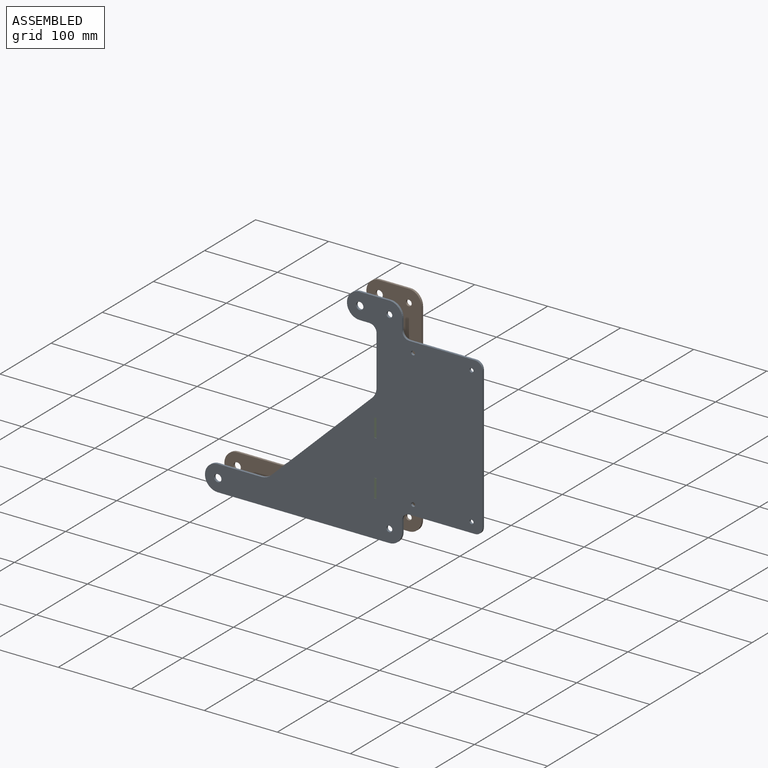
[diagram: assembled view]
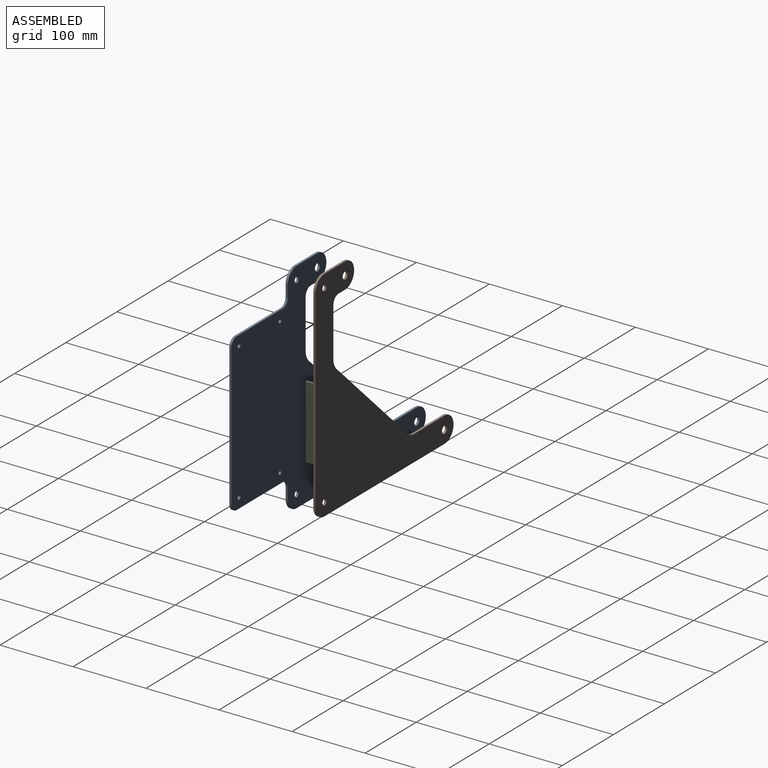
[diagram: assembled view, second angle]
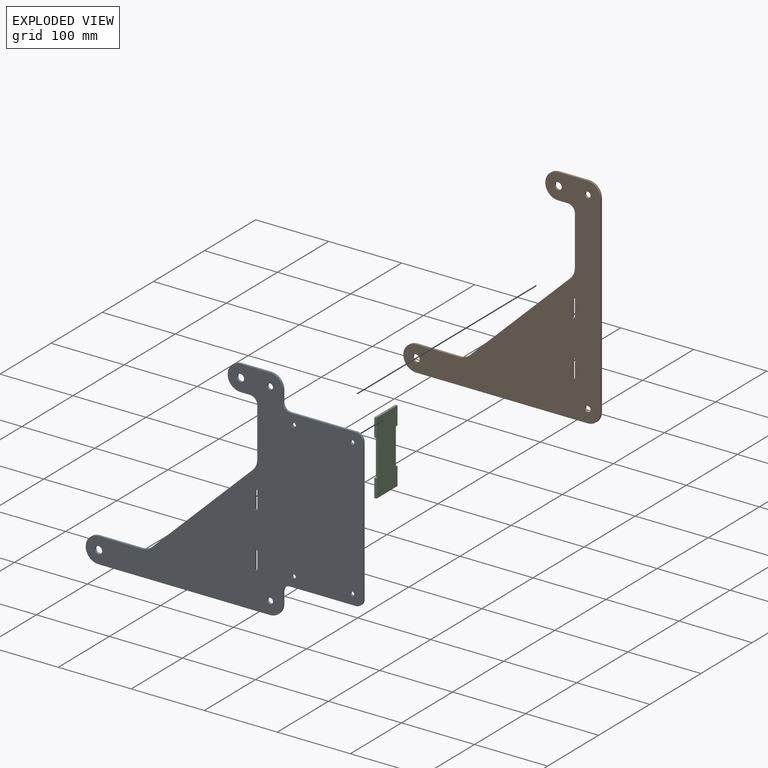
[diagram: exploded view]
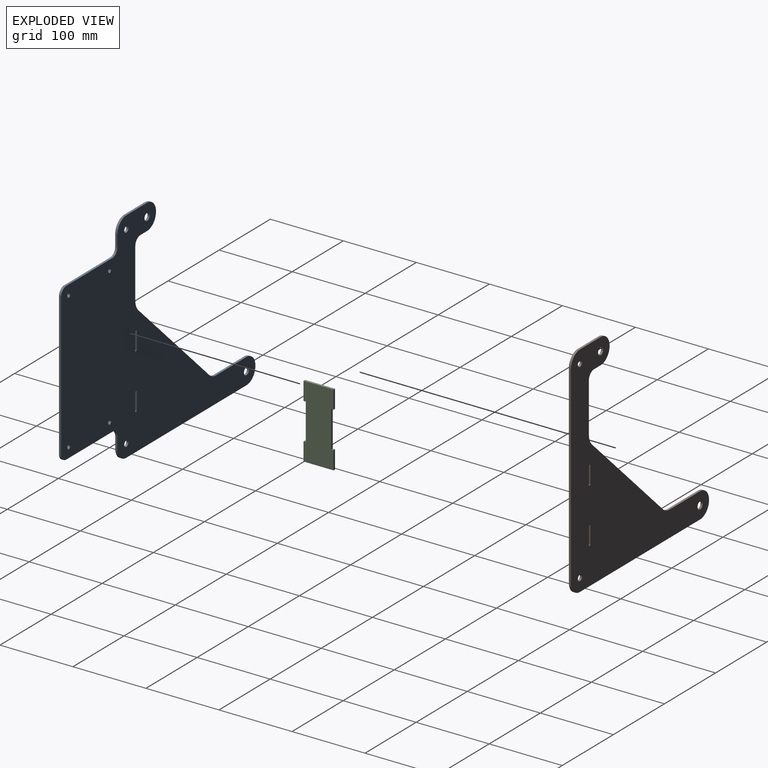
[diagram: exploded view, second angle]
ASSEMBLY  parts=3 mates=2
PART A: 40 faces, bbox 380x3x300.2 mm
  f0: cylinder r=10mm len=10mm, axis (0,1,0), area 47.1mm2, adj f1,f30,f38,f39
  f1: plane 15.08x3mm, normal (1,0,0), area 45.2mm2, adj f0,f2,f38,f39
  f2: cylinder r=17.5mm len=17.5mm, axis (0,1,0), area 82.5mm2, adj f1,f3,f38,f39
  f3: plane 40.55x3mm, normal (0,0,1), area 121.6mm2, adj f2,f4,f38,f39
  f4: cylinder r=17.5mm len=35mm, axis (0,1,0), area 164.9mm2, adj f3,f5,f38,f39
  f5: plane 13.05x3mm, normal (0,0,-1), area 39.1mm2, adj f4,f6,f38,f39
  f6: cylinder r=10mm len=10mm, axis (0,1,0), area 47.1mm2, adj f5,f7,f38,f39
  f7: plane 67.31x3mm, normal (-1,0,0), area 201.9mm2, adj f6,f8,f38,f39
  f8: cylinder r=20mm len=14.43mm, axis (0,1,0), area 48.3mm2, adj f7,f9,f38,f39
  f9: plane 138.37x132.86mm, normal (-0.69,0,0.72), area 575.5mm2, adj f8,f10,f38,f39
  f10: cylinder r=20mm len=13.85mm, axis (0,1,0), area 45.9mm2, adj f9,f11,f38,f39
  f11: plane 59.13x3mm, normal (0,0,1), area 177.4mm2, adj f10,f12,f38,f39
  f12: cylinder r=17.5mm len=35mm, axis (0,1,0), area 164.9mm2, adj f11,f13,f38,f39
  f13: plane 235x3mm, normal (0,0,-1), area 705mm2, adj f12,f14,f38,f39
  f14: cylinder r=17.5mm len=17.5mm, axis (0,1,0), area 82.5mm2, adj f13,f15,f38,f39
  f15: plane 15.08x3mm, normal (1,0,0), area 45.2mm2, adj f14,f16,f38,f39
  f16: cylinder r=10mm len=10mm, axis (0,1,0), area 47.1mm2, adj f15,f17,f38,f39
  f17: plane 90x3mm, normal (0,0,-1), area 270mm2, adj f16,f18,f38,f39
  f18: cylinder r=10mm len=10mm, axis (0,1,0), area 47.1mm2, adj f17,f19,f38,f39
  f19: plane 195x3mm, normal (1,0,0), area 585mm2, adj f18,f20,f38,f39
  f20: cylinder r=10mm len=10mm, axis (0,1,0), area 47.1mm2, adj f19,f30,f38,f39
  f21: plane 25.2x3mm, normal (-1,0,0), area 75.6mm2, adj f22,f35,f38,f39
  f22: plane 3.2x3mm, normal (0,0,1), area 9.6mm2, adj f21,f23,f38,f39
  f23: plane 25.2x3mm, normal (1,0,0), area 75.6mm2, adj f22,f35,f38,f39
  f24: plane 25.2x3mm, normal (-1,0,0), area 75.6mm2, adj f25,f36,f38,f39
  f25: plane 3.2x3mm, normal (0,0,1), area 9.6mm2, adj f24,f26,f38,f39
  f26: plane 25.2x3mm, normal (1,0,0), area 75.6mm2, adj f25,f36,f38,f39
  f27: cylinder r=5mm len=10mm, axis (0,1,0), area 94.2mm2, adj f38,f39
  f28: cylinder r=5mm len=10mm, axis (0,1,0), area 94.2mm2, adj f38,f39
  f29: cylinder r=4mm len=8mm, axis (0,1,0), area 75.4mm2, adj f38,f39
  f30: plane 90x3mm, normal (0,0,1), area 270mm2, adj f0,f20,f38,f39
  f31: cylinder r=2.75mm len=5.5mm, axis (0,1,0), area 51.8mm2, adj f38,f39
  f32: cylinder r=2.75mm len=5.5mm, axis (0,1,0), area 51.8mm2, adj f38,f39
  f33: cylinder r=2.75mm len=5.5mm, axis (0,1,0), area 51.8mm2, adj f38,f39
  f34: cylinder r=2.75mm len=5.5mm, axis (0,1,0), area 51.8mm2, adj f38,f39
  f35: plane 3.2x3mm, normal (0,0,-1), area 9.6mm2, adj f21,f23,f38,f39
  f36: plane 3.2x3mm, normal (0,0,-1), area 9.6mm2, adj f24,f26,f38,f39
  f37: cylinder r=4mm len=8mm, axis (0,1,0), area 75.4mm2, adj f38,f39
  f38: plane 380x300.17mm, normal (0,-1,0), area 53778.4mm2, adj f0,f1,f2,f3,f4,f5,f6,f7
  f39: plane 380x300.17mm, normal (0,1,0), area 53778.4mm2, adj f0,f1,f2,f3,f4,f5,f6,f7
PART B: 28 faces, bbox 270x3x300.2 mm
  f0: plane 25.2x3mm, normal (-1,0,0), area 75.6mm2, adj f1,f25,f26,f27
  f1: plane 3.2x3mm, normal (0,0,1), area 9.6mm2, adj f0,f2,f26,f27
  f2: plane 25.2x3mm, normal (1,0,0), area 75.6mm2, adj f1,f25,f26,f27
  f3: plane 25.2x3mm, normal (-1,0,0), area 75.6mm2, adj f4,f19,f26,f27
  f4: plane 3.2x3mm, normal (0,0,1), area 9.6mm2, adj f3,f5,f26,f27
  f5: plane 25.2x3mm, normal (1,0,0), area 75.6mm2, adj f4,f19,f26,f27
  f6: cylinder r=17.5mm len=35mm, axis (0,1,0), area 164.9mm2, adj f7,f23,f26,f27
  f7: plane 235x3mm, normal (0,0,-1), area 705mm2, adj f6,f8,f26,f27
  f8: cylinder r=17.5mm len=17.5mm, axis (0,1,0), area 82.5mm2, adj f7,f9,f26,f27
  f9: plane 265.17x3mm, normal (1,0,0), area 795.5mm2, adj f8,f10,f26,f27
  f10: cylinder r=17.5mm len=17.5mm, axis (0,1,0), area 82.5mm2, adj f9,f11,f26,f27
  f11: plane 40.55x3mm, normal (0,0,1), area 121.6mm2, adj f10,f12,f26,f27
  f12: cylinder r=17.5mm len=35mm, axis (0,1,0), area 164.9mm2, adj f11,f13,f26,f27
  f13: plane 13.05x3mm, normal (0,0,-1), area 39.1mm2, adj f12,f14,f26,f27
  f14: cylinder r=10mm len=10mm, axis (0,1,0), area 47.1mm2, adj f13,f15,f26,f27
  f15: plane 67.31x3mm, normal (-1,0,0), area 201.9mm2, adj f14,f16,f26,f27
  f16: cylinder r=20mm len=14.43mm, axis (0,1,0), area 48.3mm2, adj f15,f17,f26,f27
  f17: plane 138.37x132.86mm, normal (-0.69,0,0.72), area 575.5mm2, adj f16,f18,f26,f27
  f18: cylinder r=20mm len=13.85mm, axis (0,1,0), area 45.9mm2, adj f17,f23,f26,f27
  f19: plane 3.2x3mm, normal (0,0,-1), area 9.6mm2, adj f3,f5,f26,f27
  f20: cylinder r=4mm len=8mm, axis (0,1,0), area 75.4mm2, adj f26,f27
  f21: cylinder r=4mm len=8mm, axis (0,1,0), area 75.4mm2, adj f26,f27
  f22: cylinder r=5mm len=10mm, axis (0,1,0), area 94.2mm2, adj f26,f27
  f23: plane 59.13x3mm, normal (0,0,1), area 177.4mm2, adj f6,f18,f26,f27
  f24: cylinder r=5mm len=10mm, axis (0,1,0), area 94.2mm2, adj f26,f27
  f25: plane 3.2x3mm, normal (0,0,-1), area 9.6mm2, adj f0,f2,f26,f27
  f26: plane 300.17x270mm, normal (0,-1,0), area 30223.4mm2, adj f0,f1,f2,f3,f4,f5,f6,f7
  f27: plane 300.17x270mm, normal (0,1,0), area 30223.4mm2, adj f0,f1,f2,f3,f4,f5,f6,f7
PART C: 14 faces, bbox 41x3x100 mm
  f0: plane 3x3mm, normal (0,0,1), area 9mm2, adj f1,f11,f12,f13
  f1: plane 50x3mm, normal (1,0,0), area 150mm2, adj f0,f2,f12,f13
  f2: plane 3x3mm, normal (0,0,-1), area 9mm2, adj f1,f3,f12,f13
  f3: plane 25x3mm, normal (1,0,0), area 75mm2, adj f2,f4,f12,f13
  f4: plane 41x3mm, normal (0,0,1), area 123mm2, adj f3,f5,f12,f13
  f5: plane 25x3mm, normal (-1,0,0), area 75mm2, adj f4,f6,f12,f13
  f6: plane 3x3mm, normal (0,0,-1), area 9mm2, adj f5,f7,f12,f13
  f7: plane 50x3mm, normal (-1,0,0), area 150mm2, adj f6,f8,f12,f13
  f8: plane 3x3mm, normal (0,0,1), area 9mm2, adj f7,f9,f12,f13
  f9: plane 25x3mm, normal (-1,0,0), area 75mm2, adj f8,f10,f12,f13
  f10: plane 41x3mm, normal (0,0,-1), area 123mm2, adj f9,f11,f12,f13
  f11: plane 25x3mm, normal (1,0,0), area 75mm2, adj f0,f10,f12,f13
  f12: plane 100x41mm, normal (0,-1,0), area 3800mm2, adj f0,f1,f2,f3,f4,f5,f6,f7
  f13: plane 100x41mm, normal (0,1,0), area 3800mm2, adj f0,f1,f2,f3,f4,f5,f6,f7
PLACE A t=(124.12,-26.74,-397.26)mm
PLACE B t=(124.12,11.26,-397.26)mm
PLACE C rot(axis=(0,0,-1),90deg) t=(106.52,-9.24,-64.58)mm
MATE fastened C.f9 <-> B.f27  axis (0,1,0) through (105.02,11.26,-102.08)mm
MATE fastened A.f38 <-> C.f11  axis (0,-1,0) through (105.02,-29.74,-102.08)mm
